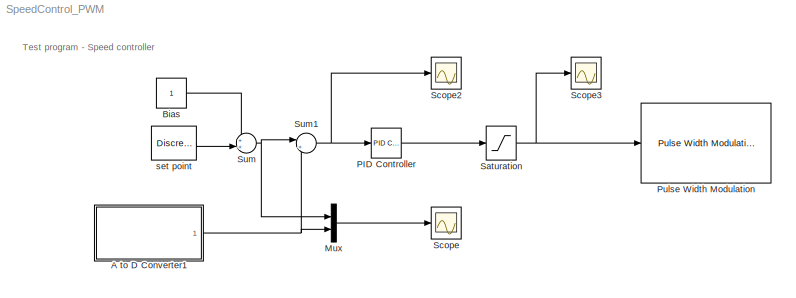
MODEL SpeedControl_PWM
KIND model
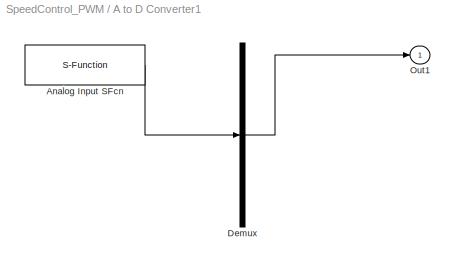
BLOCK [SubSystem] A to D Converter1
  Ports = [0, 1]
  RequestExecContextInheritance = off
  SID = 13
  ShowPortLabels = none
  Tag = mcTarget_adc
BLOCK [S-Function] A to D Converter1/Analog Input SFcn
  EnableBusSupport = off
  FunctionName = adc_sfcn_9S12
  Parameters = bank-1, firstChannel, numChannels, use10bits-1, normalize, sampletime
  Ports = [0, 1]
  SFcnIsStateOwnerBlock = off
  SFunctionDeploymentMode = off
  SID = 13:14
  Tag = mcTarget_adc
BLOCK [Demux] A to D Converter1/Demux
  Outputs = 1
  Ports = [1, 1]
  SID = 13:15
BLOCK [Outport] A to D Converter1/Out1
  IconDisplay = Port number
  SID = 13:16
BLOCK [Constant] Bias
  SID = 2
BLOCK [Mux] Mux
  DisplayOption = bar
  Inputs = 2
  Ports = [2, 1]
  SID = 3
BLOCK [Reference] PID Controller  REF=simulink_extras/Additional\nLinear/PID Controller
  D = 0.00
  FunctionWithSeparateData = off
  I = .2
  P = 1.0
  Ports = [1, 1]
  RTWMemSecDataConstants = Inherit from model
  RTWMemSecDataInternal = Inherit from model
  RTWMemSecDataParameters = Inherit from model
  RTWMemSecFuncExecute = Inherit from model
  RTWMemSecFuncInitTerm = Inherit from model
  SID = 4
  ShowPortLabels = FromPortIcon
  SourceBlock = simulink_extras/Additional\nLinear/PID Controller
  SourceProductBaseCode = SL
  SourceProductName = Simulink
  SourceType = PID Controller
  SystemSampleTime = -1
BLOCK [Reference] Pulse Width Modulation  REF=mc9s12tool/Pulse Width Modulation
  FunctionWithSeparateData = off
  PWMperiod = 0.01
  Ports = [1]
  RTWMemSecDataConstants = Inherit from model
  RTWMemSecDataInternal = Inherit from model
  RTWMemSecDataParameters = Inherit from model
  RTWMemSecFuncExecute = Inherit from model
  RTWMemSecFuncInitTerm = Inherit from model
  SID = 5
  ShowPortLabels = FromPortIcon
  SourceBlock = mc9s12tool/Pulse Width Modulation
  SourceType = Unknown
  SystemSampleTime = -1
  Tag = mcTarget_pwm
  Vmax = 5
  pulse_pin = 1  (8-bit / 16-bit)
  resolution = 16 bit
  sampletime = 0.01
  sig_mon = off
  sign_pin = 1
  sign_port = PTH
BLOCK [Saturate] Saturation
  InputPortMap = u0
  LowerLimit = 0
  Ports = [1, 1]
  SID = 6
  UpperLimit = 5
BLOCK [Scope] Scope
  Floating = off
  NumInputPorts = 1
  Ports = [1]
  SID = 7
  ScopeSpecificationString = C++SS(StrPVP('Location','[21, 490, 345, 729]'),StrPVP('Open','off'),MxPVP('AxesTitles',54,'struct(''axes1'',''%<SignalLabel>'')'),StrPVP('TimeRange','8'),StrPVP('YMin','-0.5'),StrPVP('YMax','5.5'),StrPVP('DataFormat','StructureWithTime'),StrPVP('LimitDataPoints','on'),StrPVP('Decimation','1'),StrPVP('BlockParamSampleInput','off'))
BLOCK [Scope] Scope2
  Floating = off
  NumInputPorts = 1
  Ports = [1]
  SID = 8
  ScopeSpecificationString = C++SS(StrPVP('Location','[357, 491, 681, 730]'),StrPVP('Open','off'),MxPVP('AxesTitles',54,'struct(''axes1'',''%<SignalLabel>'')'),StrPVP('TimeRange','8'),StrPVP('YMin','-5.5'),StrPVP('YMax','5.5'),StrPVP('SaveName','ScopeData2'),StrPVP('DataFormat','StructureWithTime'),StrPVP('LimitDataPoints','on'),StrPVP('Decimation','1'),StrPVP('BlockParamSampleInput','off'))
BLOCK [Scope] Scope3
  Floating = off
  NumInputPorts = 1
  Ports = [1]
  SID = 9
  ScopeSpecificationString = C++SS(StrPVP('Location','[695, 490, 1019, 729]'),StrPVP('Open','off'),MxPVP('AxesTitles',54,'struct(''axes1'',''%<SignalLabel>'')'),StrPVP('TimeRange','8'),StrPVP('YMin','-0.5'),StrPVP('YMax','5.5'),StrPVP('SaveName','ScopeData3'),StrPVP('DataFormat','StructureWithTime'),StrPVP('LimitDataPoints','on'),StrPVP('Decimation','1'),StrPVP('BlockParamSampleInput','off'))
BLOCK [Sum] Sum
  IconShape = round
  InputSameDT = off
  Inputs = ++|
  OutDataTypeStr = Inherit: Inherit via internal rule
  Ports = [2, 1]
  SID = 10
BLOCK [Sum] Sum1
  IconShape = round
  InputSameDT = off
  Inputs = |+-
  OutDataTypeStr = Inherit: Inherit via internal rule
  Ports = [2, 1]
  SID = 11
BLOCK [DiscretePulseGenerator] set point
  Amplitude = 4
  Period = 4
  Ports = [0, 1]
  PulseType = Time based
  PulseWidth = 50
  SID = 12
ANNOTATION (root): Test program - Speed controller
LINE A to D Converter1/Analog Input SFcn:1 -> A to D Converter1/Demux:1
LINE A to D Converter1/Demux:1 -> A to D Converter1/Out1:1
NET A to D Converter1:1 -> Mux:2, Sum1:2
LINE Bias:1 -> Sum:1
LINE Mux:1 -> Scope:1
LINE PID Controller:1 -> Saturation:1
NET Saturation:1 -> Pulse Width Modulation:1, Scope3:1
NET Sum1:1 -> PID Controller:1, Scope2:1
NET Sum:1 -> Mux:1, Sum1:1
LINE set point:1 -> Sum:2
note: NET lines group one-source signal fan-out (src -> all destinations, sorted); 1:1 wires keep LINE
